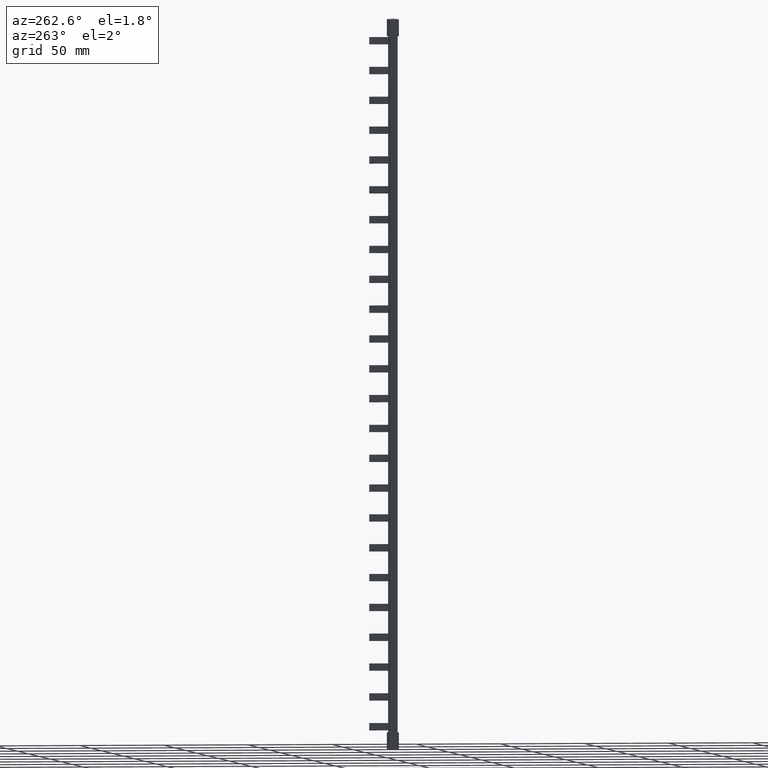
[diagram: clean part render]
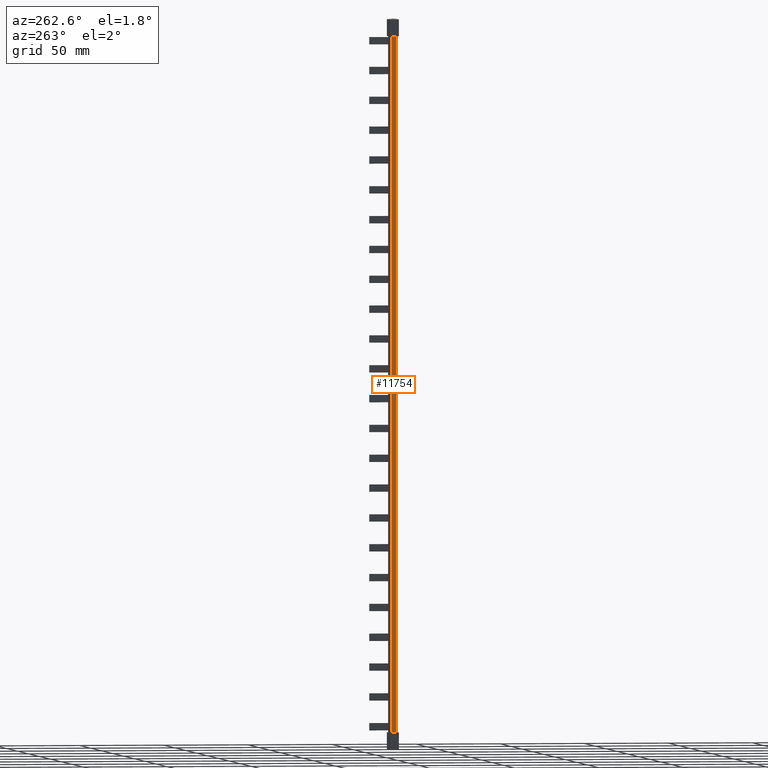
[diagram: same view with one face highlighted and labeled with its STEP entity id]
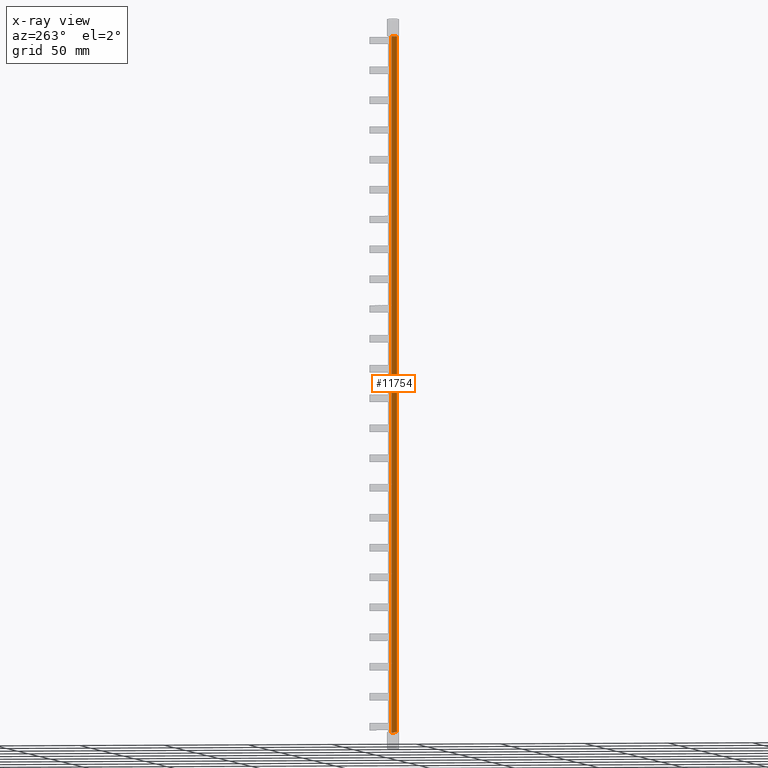
[diagram: x-ray of the same camera — body ghosted, the highlighted face saturated]
A machine part, auxiliary view. The second image highlights one B-rep face of the part: STEP entity #11754.
The next image is the same camera in x-ray: the body ghosted, the highlighted face saturated — about 0% of this face is hidden behind the body in this view.
In plain terms, the highlighted planar face has unit normal (1, 0, -0).
Its self-contained STEP definition (entity closure, byte-faithful):
#1086 = CARTESIAN_POINT ( 'NONE',  ( -0.4999998278394320900, 3.615511272787768500, -200.9000000000000900 ) ) ;
#1147 = CARTESIAN_POINT ( 'NONE',  ( -0.4999998321790347600, 0.4999999971585253300, 209.9000000000000100 ) ) ;
#1178 = CARTESIAN_POINT ( 'NONE',  ( -0.4999998530400069900, 0.4999999989344470800, -200.9000000000000900 ) ) ;
#1179 = CARTESIAN_POINT ( 'NONE',  ( -0.4999999130909725300, 3.615511274208507200, 209.9000000000000100 ) ) ;
#11365 = EDGE_CURVE ( 'NONE', #30855, #30914, #14375, .T. ) ;
#11456 = EDGE_CURVE ( 'NONE', #30914, #30899, #14520, .T. ) ;
#11470 = EDGE_CURVE ( 'NONE', #30899, #30890, #14544, .T. ) ;
#11516 = EDGE_CURVE ( 'NONE', #30890, #30855, #14614, .T. ) ;
#11754 = ADVANCED_FACE ( 'NONE', ( #15118 ), #15108, .F. ) ;
#14375 = LINE ( 'NONE', #14385, #29946 ) ;
#14385 = CARTESIAN_POINT ( 'NONE',  ( -0.5000000000000559600, 3.615511274208506700, 219.0000000000000000 ) ) ;
#14390 = DIRECTION ( 'NONE',  ( 0.0000000000000000000, 0.0000000000000000000, 1.000000000000000000 ) ) ;
#14504 = DIRECTION ( 'NONE',  ( -0.0000000000000000000, -0.0000000000000000000, -1.000000000000000000 ) ) ;
#14520 = LINE ( 'NONE', #14522, #29996 ) ;
#14522 = CARTESIAN_POINT ( 'NONE',  ( -0.4999999051901471400, -5.682891657254884900E-009, 209.9000000000000100 ) ) ;
#14524 = DIRECTION ( 'NONE',  ( -1.522599007603421600E-056, -1.000000000000000000, -3.939912114750718400E-031 ) ) ;
#14536 = CARTESIAN_POINT ( 'NONE',  ( -0.4999999999999449300, 0.4999999985792636400, 219.0000000000000000 ) ) ;
#14544 = LINE ( 'NONE', #14536, #30011 ) ;
#14614 = LINE ( 'NONE', #14630, #30007 ) ;
#14617 = DIRECTION ( 'NONE',  ( 1.522599007603421600E-056, 1.000000000000000000, -3.939912114750718400E-031 ) ) ;
#14630 = CARTESIAN_POINT ( 'NONE',  ( -0.4999998170103917600, -5.682891657254884900E-009, -200.9000000000000900 ) ) ;
#15108 = PLANE ( 'NONE',  #30103 ) ;
#15116 = CARTESIAN_POINT ( 'NONE',  ( -0.5000000000000559600, 3.615511274208504900, 219.0000000000000000 ) ) ;
#15118 = FACE_OUTER_BOUND ( 'NONE', #32933, .T. ) ;
#15129 = DIRECTION ( 'NONE',  ( 1.000000000000000000, 3.563533965728333600E-014, -0.0000000000000000000 ) ) ;
#15135 = DIRECTION ( 'NONE',  ( -3.563533965728333600E-014, 1.000000000000000000, 0.0000000000000000000 ) ) ;
#18417 = ORIENTED_EDGE ( 'NONE', *, *, #11365, .F. ) ;
#18431 = ORIENTED_EDGE ( 'NONE', *, *, #11516, .F. ) ;
#18462 = ORIENTED_EDGE ( 'NONE', *, *, #11456, .F. ) ;
#18471 = ORIENTED_EDGE ( 'NONE', *, *, #11470, .F. ) ;
#29946 = VECTOR ( 'NONE', #14390, 1000.000000000000000 ) ;
#29996 = VECTOR ( 'NONE', #14524, 1000.000000000000000 ) ;
#30007 = VECTOR ( 'NONE', #14617, 1000.000000000000000 ) ;
#30011 = VECTOR ( 'NONE', #14504, 1000.000000000000000 ) ;
#30103 = AXIS2_PLACEMENT_3D ( 'NONE', #15116, #15129, #15135 ) ;
#30855 = VERTEX_POINT ( 'NONE', #1086 ) ;
#30890 = VERTEX_POINT ( 'NONE', #1178 ) ;
#30899 = VERTEX_POINT ( 'NONE', #1147 ) ;
#30914 = VERTEX_POINT ( 'NONE', #1179 ) ;
#32933 = EDGE_LOOP ( 'NONE', ( #18462, #18417, #18431, #18471 ) ) ;